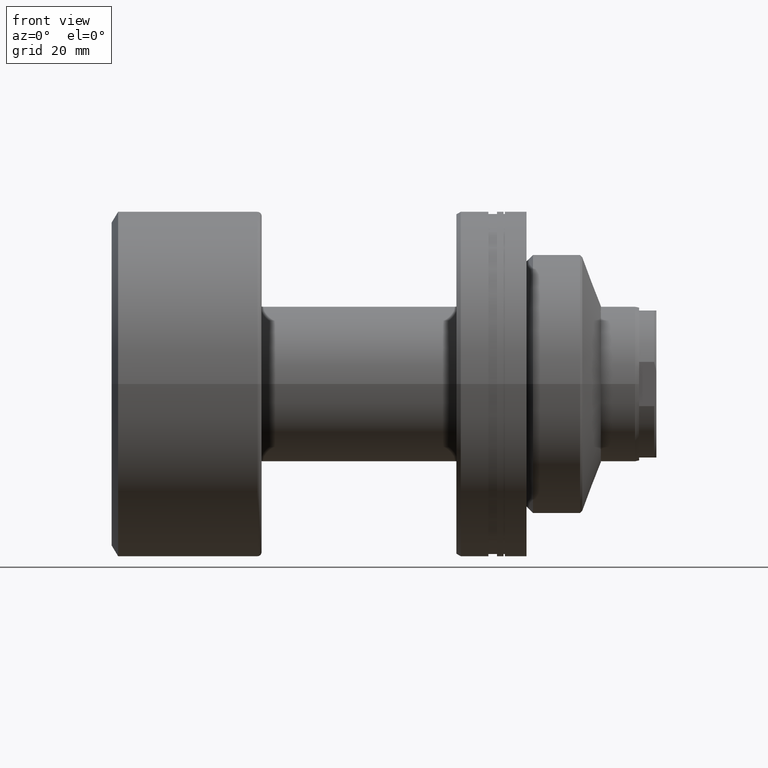
[diagram: clean part render]
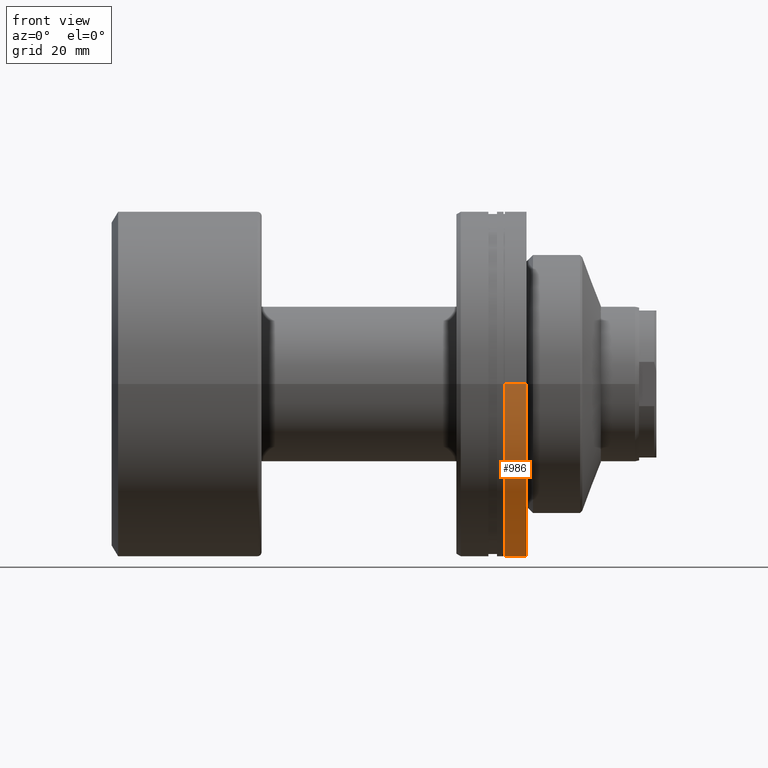
[diagram: same view with one face highlighted and labeled with its STEP entity id]
A machine part, front view. The second image highlights one B-rep face of the part: STEP entity #986.
In plain terms, the highlighted cylindrical surface (partial cylindrical patch) has radius 40 mm, axis along (1, 0, 0).
Its self-contained STEP definition (entity closure, byte-faithful):
#2 = EDGE_CURVE ( 'NONE', #2311, #1597, #438, .T. ) ;
#28 = VECTOR ( 'NONE', #1547, 1000.000000000000000 ) ;
#97 = LINE ( 'NONE', #811, #28 ) ;
#102 = AXIS2_PLACEMENT_3D ( 'NONE', #416, #976, #1868 ) ;
#234 = ORIENTED_EDGE ( 'NONE', *, *, #2119, .F. ) ;
#244 = ORIENTED_EDGE ( 'NONE', *, *, #501, .T. ) ;
#283 = DIRECTION ( 'NONE',  ( -3.469446951953613696E-16, 1.000000000000000000, 0.000000000000000000 ) ) ;
#306 = CARTESIAN_POINT ( 'NONE',  ( -30.28002276692732408, 0.000000000000000000, 0.000000000000000000 ) ) ;
#330 = DIRECTION ( 'NONE',  ( 1.000000000000000000, 3.738146982434194072E-16, -0.000000000000000000 ) ) ;
#416 = CARTESIAN_POINT ( 'NONE',  ( -29.00000000000001066, 4.784913243636394851E-16, 0.000000000000000000 ) ) ;
#438 = CIRCLE ( 'NONE', #102, 40.00000000000000711 ) ;
#439 = EDGE_LOOP ( 'NONE', ( #1783, #1735, #244, #234 ) ) ;
#501 = EDGE_CURVE ( 'NONE', #1597, #1825, #697, .T. ) ;
#685 = CARTESIAN_POINT ( 'NONE',  ( -30.28002276692733830, 40.00000000000000711, 0.000000000000000000 ) ) ;
#697 = LINE ( 'NONE', #685, #2152 ) ;
#811 = CARTESIAN_POINT ( 'NONE',  ( -30.28002276692730987, -40.00000000000000711, 4.898587196589413815E-15 ) ) ;
#821 = DIRECTION ( 'NONE',  ( 1.000000000000000000, 3.738146982434194072E-16, -0.000000000000000000 ) ) ;
#914 = AXIS2_PLACEMENT_3D ( 'NONE', #306, #821, #1162 ) ;
#976 = DIRECTION ( 'NONE',  ( 1.000000000000000000, 3.738146982434194072E-16, -0.000000000000000000 ) ) ;
#986 = ADVANCED_FACE ( 'NONE', ( #2245 ), #1733, .T. ) ;
#1078 = DIRECTION ( 'NONE',  ( 1.000000000000000000, 3.738146982434194072E-16, -0.000000000000000000 ) ) ;
#1162 = DIRECTION ( 'NONE',  ( -3.469446951953613696E-16, 1.000000000000000000, 0.000000000000000000 ) ) ;
#1180 = CARTESIAN_POINT ( 'NONE',  ( -24.00000000000000711, 2.347564815580738247E-15, 0.000000000000000000 ) ) ;
#1264 = CARTESIAN_POINT ( 'NONE',  ( -23.99999999999999289, -40.00000000000000711, 4.898587196589413815E-15 ) ) ;
#1376 = CARTESIAN_POINT ( 'NONE',  ( -29.00000000000002487, 40.00000000000000711, 0.000000000000000000 ) ) ;
#1503 = CIRCLE ( 'NONE', #2061, 40.00000000000000711 ) ;
#1547 = DIRECTION ( 'NONE',  ( 1.000000000000000000, 3.738146982434194072E-16, -0.000000000000000000 ) ) ;
#1597 = VERTEX_POINT ( 'NONE', #1376 ) ;
#1600 = VERTEX_POINT ( 'NONE', #1264 ) ;
#1640 = CARTESIAN_POINT ( 'NONE',  ( -24.00000000000002132, 40.00000000000000711, 0.000000000000000000 ) ) ;
#1684 = CARTESIAN_POINT ( 'NONE',  ( -28.99999999999999645, -40.00000000000000711, 4.898587196589413815E-15 ) ) ;
#1733 = CYLINDRICAL_SURFACE ( 'NONE', #914, 40.00000000000000711 ) ;
#1735 = ORIENTED_EDGE ( 'NONE', *, *, #2, .T. ) ;
#1783 = ORIENTED_EDGE ( 'NONE', *, *, #1977, .F. ) ;
#1825 = VERTEX_POINT ( 'NONE', #1640 ) ;
#1868 = DIRECTION ( 'NONE',  ( -3.469446951953613696E-16, 1.000000000000000000, 0.000000000000000000 ) ) ;
#1977 = EDGE_CURVE ( 'NONE', #2311, #1600, #97, .T. ) ;
#2061 = AXIS2_PLACEMENT_3D ( 'NONE', #1180, #330, #283 ) ;
#2119 = EDGE_CURVE ( 'NONE', #1600, #1825, #1503, .T. ) ;
#2152 = VECTOR ( 'NONE', #1078, 1000.000000000000000 ) ;
#2245 = FACE_OUTER_BOUND ( 'NONE', #439, .T. ) ;
#2311 = VERTEX_POINT ( 'NONE', #1684 ) ;